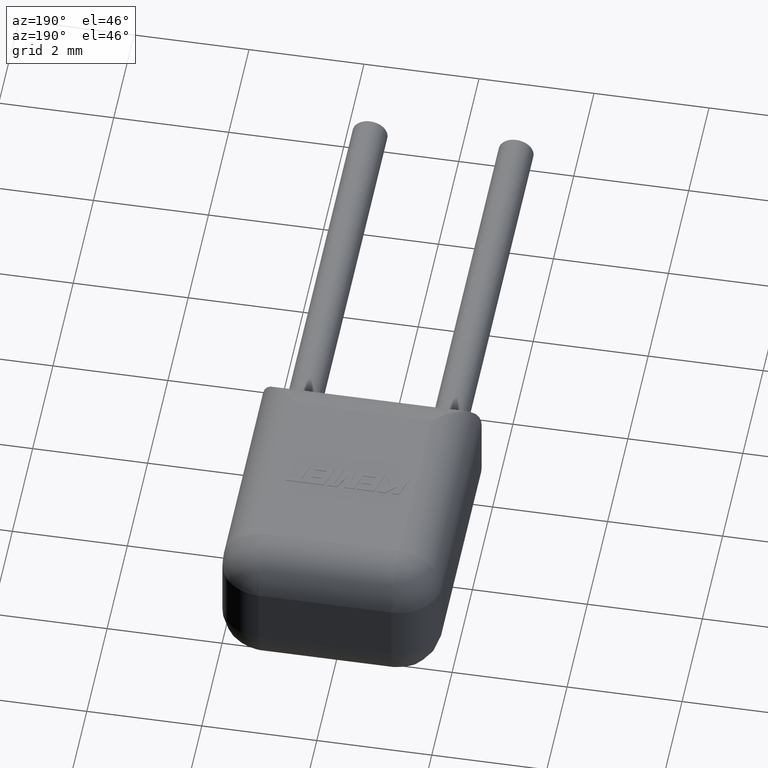
[diagram: clean part render]
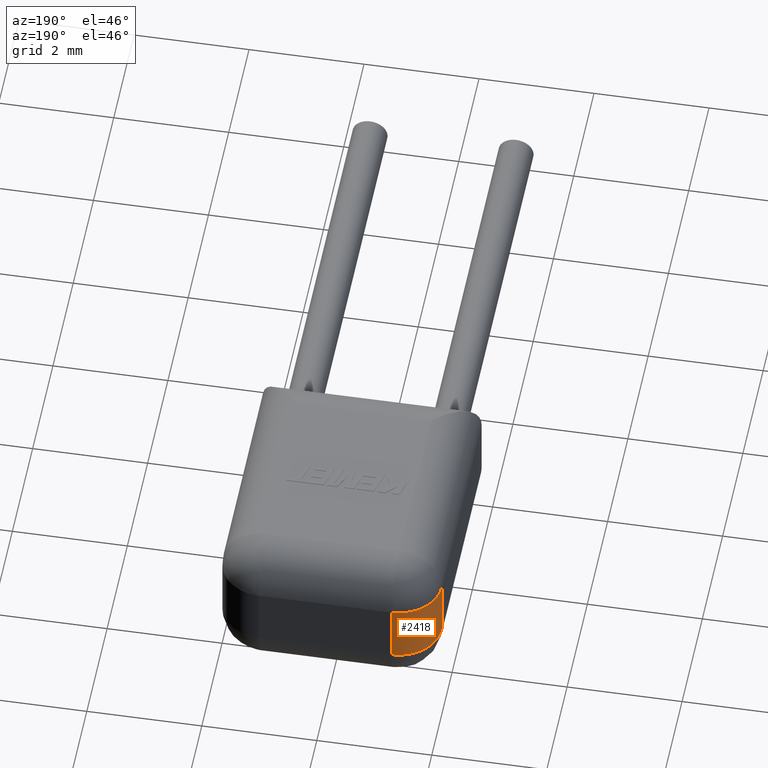
[diagram: same view with one face highlighted and labeled with its STEP entity id]
A machine part, auxiliary view. The second image highlights one B-rep face of the part: STEP entity #2418.
In plain terms, the highlighted cylindrical surface (partial cylindrical patch) has radius 0.75 mm, axis along (0, 0, -1).
Its self-contained STEP definition (entity closure, byte-faithful):
#72 = FACE_OUTER_BOUND ( 'NONE', #3134, .T. ) ;
#122 = VERTEX_POINT ( 'NONE', #2117 ) ;
#137 = DIRECTION ( 'NONE',  ( 0.0000000000000000000, 0.0000000000000000000, -1.000000000000000000 ) ) ;
#187 = CARTESIAN_POINT ( 'NONE',  ( -3.060000000000000100, 3.910000000000000100, 0.7500000000000000000 ) ) ;
#205 = ORIENTED_EDGE ( 'NONE', *, *, #1039, .F. ) ;
#347 = CARTESIAN_POINT ( 'NONE',  ( -3.810000000000000100, 3.910000000000000100, 2.540000000000000000 ) ) ;
#598 = CARTESIAN_POINT ( 'NONE',  ( -3.060000000000000100, 3.910000000000000100, 1.790000000000000000 ) ) ;
#778 = VERTEX_POINT ( 'NONE', #2110 ) ;
#1014 = DIRECTION ( 'NONE',  ( -1.000000000000000000, 0.0000000000000000000, 0.0000000000000000000 ) ) ;
#1026 = CARTESIAN_POINT ( 'NONE',  ( -3.060000000000000100, 4.660000000000000100, 2.540000000000000000 ) ) ;
#1039 = EDGE_CURVE ( 'NONE', #122, #778, #3159, .T. ) ;
#1126 = CYLINDRICAL_SURFACE ( 'NONE', #2080, 0.7499999999999997800 ) ;
#1412 = ORIENTED_EDGE ( 'NONE', *, *, #2554, .T. ) ;
#1589 = ORIENTED_EDGE ( 'NONE', *, *, #2274, .F. ) ;
#1663 = DIRECTION ( 'NONE',  ( -1.000000000000000000, 0.0000000000000000000, 0.0000000000000000000 ) ) ;
#1856 = ORIENTED_EDGE ( 'NONE', *, *, #2429, .F. ) ;
#1950 = AXIS2_PLACEMENT_3D ( 'NONE', #598, #3253, #3549 ) ;
#2052 = VECTOR ( 'NONE', #2394, 1000.000000000000000 ) ;
#2080 = AXIS2_PLACEMENT_3D ( 'NONE', #2185, #137, #1014 ) ;
#2110 = CARTESIAN_POINT ( 'NONE',  ( -3.810000000000000100, 3.910000000000000100, 0.7500000000000000000 ) ) ;
#2117 = CARTESIAN_POINT ( 'NONE',  ( -3.810000000000000100, 3.910000000000000100, 1.790000000000000000 ) ) ;
#2185 = CARTESIAN_POINT ( 'NONE',  ( -3.060000000000000100, 3.910000000000000100, 2.540000000000000000 ) ) ;
#2227 = DIRECTION ( 'NONE',  ( -0.0000000000000000000, -0.0000000000000000000, 1.000000000000000000 ) ) ;
#2274 = EDGE_CURVE ( 'NONE', #3404, #122, #2929, .T. ) ;
#2394 = DIRECTION ( 'NONE',  ( 0.0000000000000000000, 0.0000000000000000000, -1.000000000000000000 ) ) ;
#2418 = ADVANCED_FACE ( 'NONE', ( #72 ), #1126, .T. ) ;
#2429 = EDGE_CURVE ( 'NONE', #2851, #3404, #3051, .T. ) ;
#2478 = DIRECTION ( 'NONE',  ( -0.0000000000000000000, -0.0000000000000000000, 1.000000000000000000 ) ) ;
#2554 = EDGE_CURVE ( 'NONE', #2851, #778, #3484, .T. ) ;
#2728 = CARTESIAN_POINT ( 'NONE',  ( -3.060000000000000100, 4.660000000000000100, 0.7500000000000000000 ) ) ;
#2851 = VERTEX_POINT ( 'NONE', #2728 ) ;
#2929 = CIRCLE ( 'NONE', #1950, 0.7499999999999997800 ) ;
#2987 = AXIS2_PLACEMENT_3D ( 'NONE', #187, #2227, #1663 ) ;
#3051 = LINE ( 'NONE', #1026, #3707 ) ;
#3134 = EDGE_LOOP ( 'NONE', ( #1412, #205, #1589, #1856 ) ) ;
#3159 = LINE ( 'NONE', #347, #2052 ) ;
#3253 = DIRECTION ( 'NONE',  ( 0.0000000000000000000, -0.0000000000000000000, 1.000000000000000000 ) ) ;
#3404 = VERTEX_POINT ( 'NONE', #3515 ) ;
#3484 = CIRCLE ( 'NONE', #2987, 0.7499999999999997800 ) ;
#3515 = CARTESIAN_POINT ( 'NONE',  ( -3.060000000000000100, 4.660000000000000100, 1.790000000000000000 ) ) ;
#3549 = DIRECTION ( 'NONE',  ( 1.000000000000000000, 0.0000000000000000000, 0.0000000000000000000 ) ) ;
#3707 = VECTOR ( 'NONE', #2478, 1000.000000000000000 ) ;